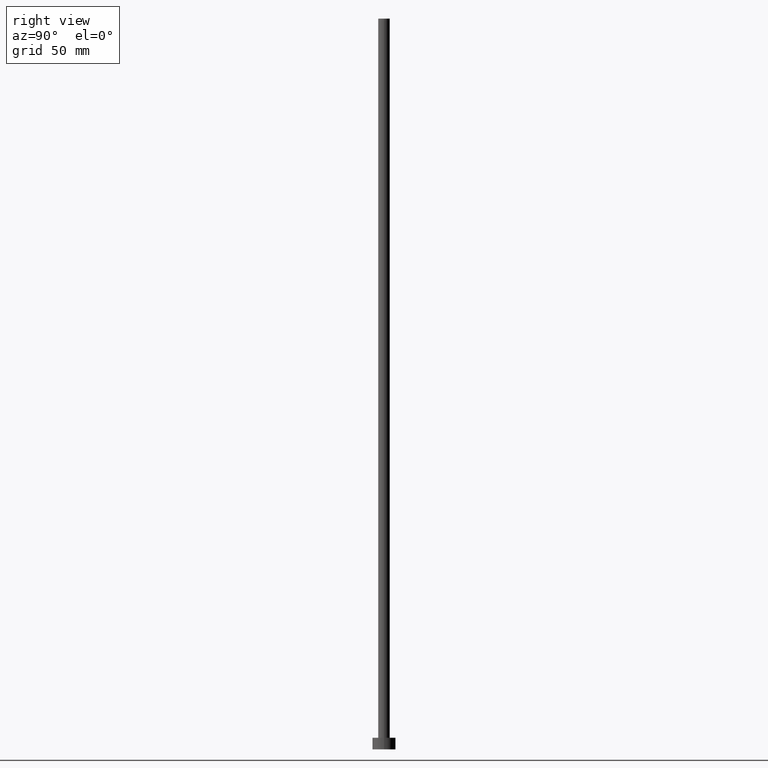
[diagram: clean part render]
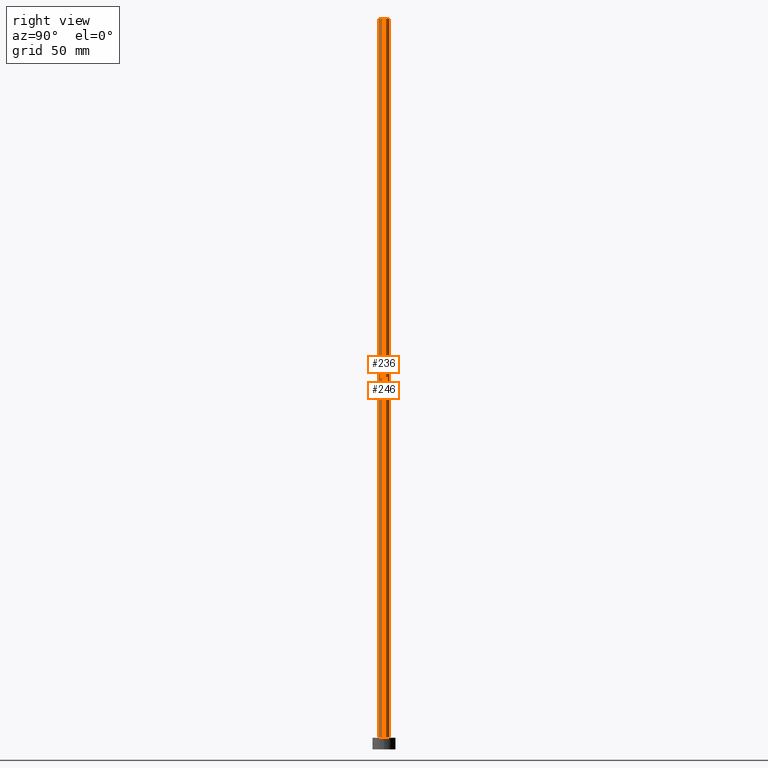
[diagram: same view with one multi-face feature highlighted, each face labeled with its STEP entity id]
A machine part, right view. The highlighted faces form ONE feature: a constant-radius fillet chain: 2 tangent blend faces with common blend radius 2.5 mm. The faces share edges in the B-rep.
Their STEP definitions:
[1] entity #236 (Cylinder):
#2 = CIRCLE ( 'NONE', #208, 2.500000000000000000 ) ;
#6 = CARTESIAN_POINT ( 'NONE',  ( 2.500000000000000000, 3.061616997868383141E-16, 315.0000000000000000 ) ) ;
#8 = LINE ( 'NONE', #9, #227 ) ;
#9 = CARTESIAN_POINT ( 'NONE',  ( -2.500000000000000000, 0.000000000000000000, 315.0000000000000000 ) ) ;
#15 = DIRECTION ( 'NONE',  ( 1.000000000000000000, 0.000000000000000000, 0.000000000000000000 ) ) ;
#23 = DIRECTION ( 'NONE',  ( -0.000000000000000000, -0.000000000000000000, -1.000000000000000000 ) ) ;
#44 = VECTOR ( 'NONE', #238, 1000.000000000000000 ) ;
#45 = EDGE_CURVE ( 'NONE', #242, #140, #2, .T. ) ;
#52 = ORIENTED_EDGE ( 'NONE', *, *, #45, .F. ) ;
#55 = DIRECTION ( 'NONE',  ( -1.000000000000000000, 0.000000000000000000, 0.000000000000000000 ) ) ;
#64 = EDGE_CURVE ( 'NONE', #224, #216, #88, .T. ) ;
#73 = EDGE_LOOP ( 'NONE', ( #255, #52, #134, #170 ) ) ;
#77 = DIRECTION ( 'NONE',  ( -0.000000000000000000, -0.000000000000000000, -1.000000000000000000 ) ) ;
#86 = EDGE_CURVE ( 'NONE', #242, #224, #8, .T. ) ;
#88 = CIRCLE ( 'NONE', #118, 2.500000000000000000 ) ;
#90 = CARTESIAN_POINT ( 'NONE',  ( -2.500000000000000000, 0.000000000000000000, 315.0000000000000000 ) ) ;
#92 = CARTESIAN_POINT ( 'NONE',  ( 0.000000000000000000, 0.000000000000000000, 315.0000000000000000 ) ) ;
#105 = CARTESIAN_POINT ( 'NONE',  ( 0.000000000000000000, 0.000000000000000000, 5.000000000000000000 ) ) ;
#118 = AXIS2_PLACEMENT_3D ( 'NONE', #105, #192, #15 ) ;
#128 = CARTESIAN_POINT ( 'NONE',  ( -2.500000000000000000, 0.000000000000000000, 5.000000000000000000 ) ) ;
#129 = EDGE_CURVE ( 'NONE', #140, #216, #185, .T. ) ;
#132 = AXIS2_PLACEMENT_3D ( 'NONE', #92, #23, #55 ) ;
#134 = ORIENTED_EDGE ( 'NONE', *, *, #86, .T. ) ;
#136 = FACE_OUTER_BOUND ( 'NONE', #73, .T. ) ;
#140 = VERTEX_POINT ( 'NONE', #237 ) ;
#144 = DIRECTION ( 'NONE',  ( 1.000000000000000000, 0.000000000000000000, 0.000000000000000000 ) ) ;
#148 = CARTESIAN_POINT ( 'NONE',  ( 2.500000000000000000, 3.061616997868383141E-16, 5.000000000000000000 ) ) ;
#170 = ORIENTED_EDGE ( 'NONE', *, *, #64, .T. ) ;
#185 = LINE ( 'NONE', #6, #44 ) ;
#187 = DIRECTION ( 'NONE',  ( 0.000000000000000000, 0.000000000000000000, 1.000000000000000000 ) ) ;
#192 = DIRECTION ( 'NONE',  ( 0.000000000000000000, 0.000000000000000000, 1.000000000000000000 ) ) ;
#202 = CARTESIAN_POINT ( 'NONE',  ( 0.000000000000000000, 0.000000000000000000, 315.0000000000000000 ) ) ;
#208 = AXIS2_PLACEMENT_3D ( 'NONE', #202, #187, #144 ) ;
#214 = CYLINDRICAL_SURFACE ( 'NONE', #132, 2.500000000000000000 ) ;
#216 = VERTEX_POINT ( 'NONE', #148 ) ;
#224 = VERTEX_POINT ( 'NONE', #128 ) ;
#227 = VECTOR ( 'NONE', #77, 1000.000000000000000 ) ;
#236 = ADVANCED_FACE ( 'NONE', ( #136 ), #214, .T. ) ;
#237 = CARTESIAN_POINT ( 'NONE',  ( 2.500000000000000000, 3.061616997868383141E-16, 315.0000000000000000 ) ) ;
#238 = DIRECTION ( 'NONE',  ( -0.000000000000000000, -0.000000000000000000, -1.000000000000000000 ) ) ;
#242 = VERTEX_POINT ( 'NONE', #90 ) ;
#255 = ORIENTED_EDGE ( 'NONE', *, *, #129, .F. ) ;
[2] entity #246 (Cylinder):
#6 = CARTESIAN_POINT ( 'NONE',  ( 2.500000000000000000, 3.061616997868383141E-16, 315.0000000000000000 ) ) ;
#8 = LINE ( 'NONE', #9, #227 ) ;
#9 = CARTESIAN_POINT ( 'NONE',  ( -2.500000000000000000, 0.000000000000000000, 315.0000000000000000 ) ) ;
#29 = AXIS2_PLACEMENT_3D ( 'NONE', #69, #39, #115 ) ;
#30 = CIRCLE ( 'NONE', #164, 2.500000000000000000 ) ;
#39 = DIRECTION ( 'NONE',  ( -0.000000000000000000, -0.000000000000000000, -1.000000000000000000 ) ) ;
#44 = VECTOR ( 'NONE', #238, 1000.000000000000000 ) ;
#49 = ORIENTED_EDGE ( 'NONE', *, *, #226, .F. ) ;
#69 = CARTESIAN_POINT ( 'NONE',  ( 0.000000000000000000, 0.000000000000000000, 315.0000000000000000 ) ) ;
#77 = DIRECTION ( 'NONE',  ( -0.000000000000000000, -0.000000000000000000, -1.000000000000000000 ) ) ;
#79 = CARTESIAN_POINT ( 'NONE',  ( 0.000000000000000000, 0.000000000000000000, 5.000000000000000000 ) ) ;
#86 = EDGE_CURVE ( 'NONE', #242, #224, #8, .T. ) ;
#90 = CARTESIAN_POINT ( 'NONE',  ( -2.500000000000000000, 0.000000000000000000, 315.0000000000000000 ) ) ;
#115 = DIRECTION ( 'NONE',  ( -1.000000000000000000, 0.000000000000000000, 0.000000000000000000 ) ) ;
#119 = CIRCLE ( 'NONE', #225, 2.500000000000000000 ) ;
#128 = CARTESIAN_POINT ( 'NONE',  ( -2.500000000000000000, 0.000000000000000000, 5.000000000000000000 ) ) ;
#129 = EDGE_CURVE ( 'NONE', #140, #216, #185, .T. ) ;
#140 = VERTEX_POINT ( 'NONE', #237 ) ;
#141 = EDGE_CURVE ( 'NONE', #216, #224, #30, .T. ) ;
#146 = DIRECTION ( 'NONE',  ( 1.000000000000000000, 0.000000000000000000, 0.000000000000000000 ) ) ;
#148 = CARTESIAN_POINT ( 'NONE',  ( 2.500000000000000000, 3.061616997868383141E-16, 5.000000000000000000 ) ) ;
#155 = ORIENTED_EDGE ( 'NONE', *, *, #129, .T. ) ;
#157 = EDGE_LOOP ( 'NONE', ( #49, #155, #209, #165 ) ) ;
#164 = AXIS2_PLACEMENT_3D ( 'NONE', #79, #241, #146 ) ;
#165 = ORIENTED_EDGE ( 'NONE', *, *, #86, .F. ) ;
#173 = FACE_OUTER_BOUND ( 'NONE', #157, .T. ) ;
#185 = LINE ( 'NONE', #6, #44 ) ;
#194 = DIRECTION ( 'NONE',  ( 1.000000000000000000, 0.000000000000000000, 0.000000000000000000 ) ) ;
#206 = CARTESIAN_POINT ( 'NONE',  ( 0.000000000000000000, 0.000000000000000000, 315.0000000000000000 ) ) ;
#209 = ORIENTED_EDGE ( 'NONE', *, *, #141, .T. ) ;
#216 = VERTEX_POINT ( 'NONE', #148 ) ;
#224 = VERTEX_POINT ( 'NONE', #128 ) ;
#225 = AXIS2_PLACEMENT_3D ( 'NONE', #206, #249, #194 ) ;
#226 = EDGE_CURVE ( 'NONE', #140, #242, #119, .T. ) ;
#227 = VECTOR ( 'NONE', #77, 1000.000000000000000 ) ;
#230 = CYLINDRICAL_SURFACE ( 'NONE', #29, 2.500000000000000000 ) ;
#237 = CARTESIAN_POINT ( 'NONE',  ( 2.500000000000000000, 3.061616997868383141E-16, 315.0000000000000000 ) ) ;
#238 = DIRECTION ( 'NONE',  ( -0.000000000000000000, -0.000000000000000000, -1.000000000000000000 ) ) ;
#241 = DIRECTION ( 'NONE',  ( 0.000000000000000000, 0.000000000000000000, 1.000000000000000000 ) ) ;
#242 = VERTEX_POINT ( 'NONE', #90 ) ;
#246 = ADVANCED_FACE ( 'NONE', ( #173 ), #230, .T. ) ;
#249 = DIRECTION ( 'NONE',  ( 0.000000000000000000, 0.000000000000000000, 1.000000000000000000 ) ) ;